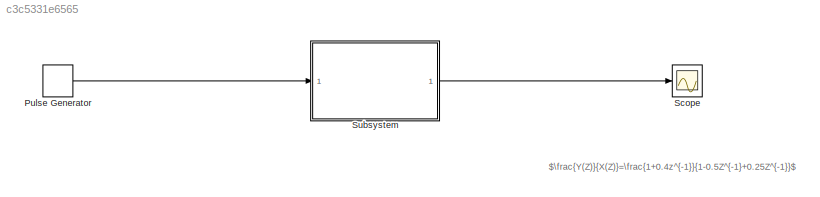
MODEL slx_c3c5331e6565
KIND model
CONFIG AbsTol = auto
CONFIG EnableMultiTasking = off
CONFIG FixedStep = auto
CONFIG MaxStep = auto
CONFIG MinStep = auto
CONFIG RelTol = 1e-3
CONFIG SampleTimeConstraint = Unconstrained
CONFIG Solver = VariableStepAuto
CONFIG SolverName = VariableStepAuto
CONFIG StartTime = 0.0
CONFIG StopTime = 10.0
BLOCK [DiscretePulseGenerator] Pulse Generator
  Period = 10
  Ports = [0, 1]
  PulseType = Time based
  PulseWidth = 5
BLOCK [Scope] Scope
  Floating = off
  NumInputPorts = 1
  Ports = [1]
  ScopeSpecificationString = Simulink.scopes.TimeScopeBlockCfg('CurrentConfiguration', extmgr.ConfigurationSet(extmgr.Configuration('Core','General UI',true),extmgr.Configuration('Core','Source UI',true),extmgr.Configuration('Sources','WiredSimulink',true),extmgr.Configuration('Visuals','Time Domain',true,'SerializedDisplays',{struct('MinYLimReal','-0.55781','MaxYLimReal','2.39531','YLabelReal','','MinYLimMag','0.00000','MaxY...<+1378ch>
BLOCK [ModelReference] Subsystem
  ModelNameDialog = Subsystem1
  ModelReferenceVersion = 1.2
  Ports = [1, 1]
ANNOTATION (root): $\frac{Y(Z)}{X(Z)}=\frac{1+0.4z^{-1}}{1-0.5Z^{-1}+0.25Z^{-1}}$
LINE Pulse Generator:1 -> Subsystem:1
LINE Subsystem:1 -> Scope:1
